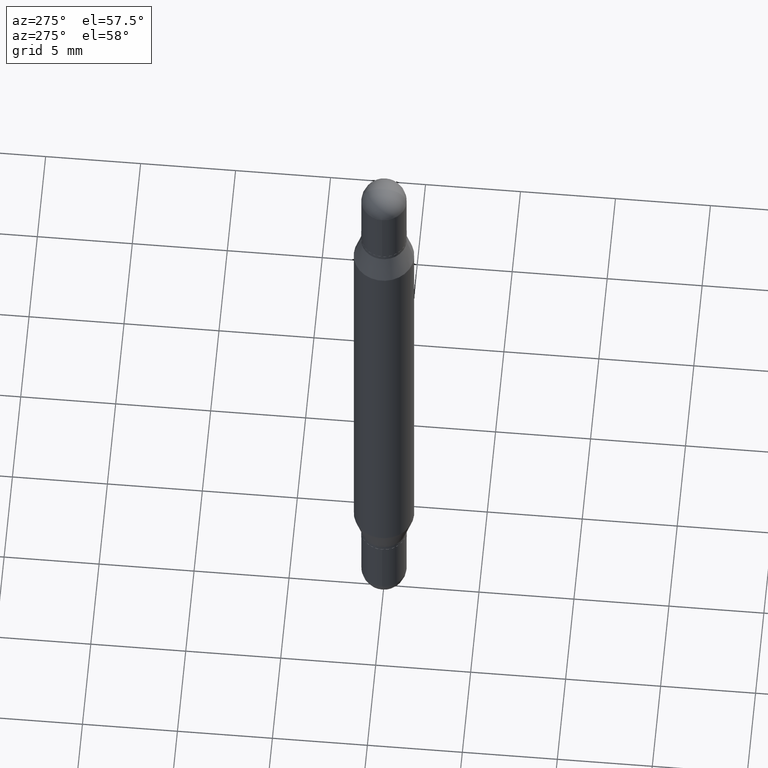
[diagram: clean part render]
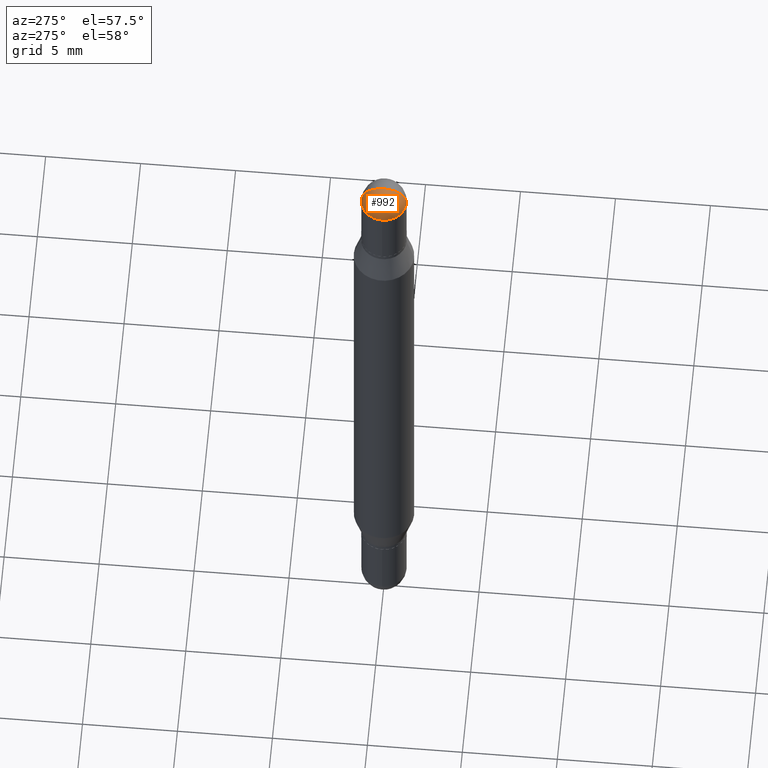
[diagram: same view with one face highlighted and labeled with its STEP entity id]
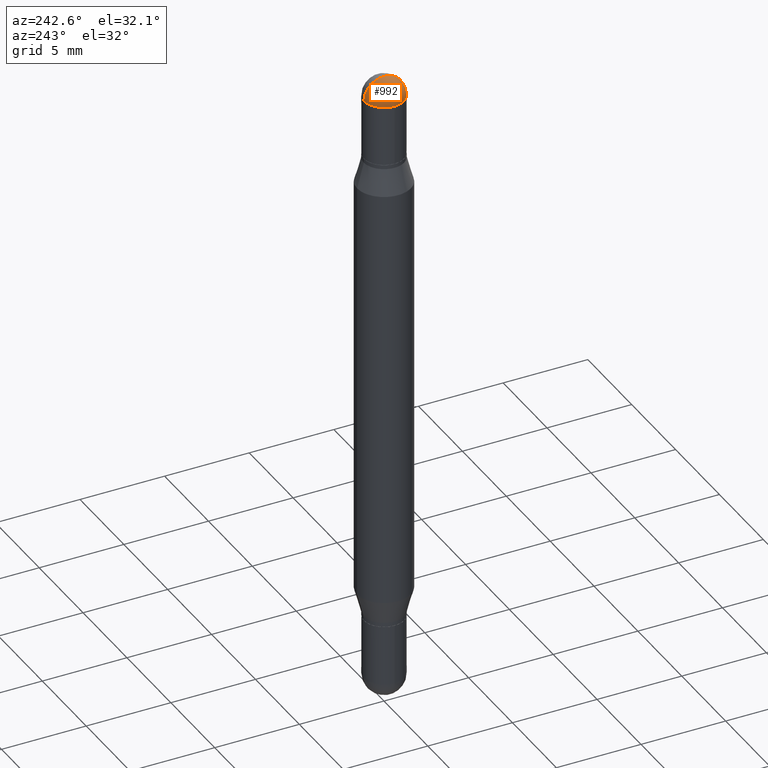
[diagram: same view with one face highlighted and labeled with its STEP entity id]
A machine part, auxiliary view. The second image highlights one B-rep face of the part: STEP entity #992.
A second angle (auxiliary view) of the same face is appended — the face is thin or edge-on in the first view.
In plain terms, the highlighted spherical surface has radius 1.1913 mm.
Its self-contained STEP definition (entity closure, byte-faithful):
#30 = DIRECTION ( 'NONE',  ( -6.982962677686266711E-15, -1.000000000000000000, 0.000000000000000000 ) ) ;
#42 = VERTEX_POINT ( 'NONE', #378 ) ;
#136 = VERTEX_POINT ( 'NONE', #461 ) ;
#148 = CARTESIAN_POINT ( 'NONE',  ( -3.217573560954492892E-16, -0.04690000000000017072, -0.04689999999999954622 ) ) ;
#186 = DIRECTION ( 'NONE',  ( 1.000000000000000000, -6.982962677686266711E-15, -1.566701062079992379E-31 ) ) ;
#244 = CARTESIAN_POINT ( 'NONE',  ( 3.275009495835214505E-16, 0.04689999999999983071, -0.04689999999999987235 ) ) ;
#267 = EDGE_CURVE ( 'NONE', #42, #639, #1015, .T. ) ;
#272 = SPHERICAL_SURFACE ( 'NONE', #551, 0.04689999999999999725 ) ;
#345 = FACE_OUTER_BOUND ( 'NONE', #591, .T. ) ;
#376 = DIRECTION ( 'NONE',  ( -1.000000000000000000, 6.982962677686265922E-15, 1.566701062080016245E-31 ) ) ;
#378 = CARTESIAN_POINT ( 'NONE',  ( 3.666197844329579344E-29, -1.177195064298716404E-17, 5.634436486932542518E-16 ) ) ;
#393 = EDGE_CURVE ( 'NONE', #705, #136, #769, .T. ) ;
#461 = CARTESIAN_POINT ( 'NONE',  ( -0.04689999999999999725, -9.408370971655837183E-17, -0.04689999999999971275 ) ) ;
#472 = EDGE_CURVE ( 'NONE', #42, #705, #568, .T. ) ;
#476 = DIRECTION ( 'NONE',  ( 1.000000000000000000, -6.860497997771530774E-15, -5.827999781331232286E-31 ) ) ;
#513 = CARTESIAN_POINT ( 'NONE',  ( 3.553510722267622201E-29, -1.720940724002473634E-16, -0.04689999999999971275 ) ) ;
#516 = AXIS2_PLACEMENT_3D ( 'NONE', #513, #1045, #947 ) ;
#526 = DIRECTION ( 'NONE',  ( 6.982962677686266711E-15, 1.000000000000000000, -3.458496260635727596E-15 ) ) ;
#551 = AXIS2_PLACEMENT_3D ( 'NONE', #953, #186, #526 ) ;
#568 = CIRCLE ( 'NONE', #1092, 0.04689999999999999725 ) ;
#582 = ORIENTED_EDGE ( 'NONE', *, *, #978, .T. ) ;
#591 = EDGE_LOOP ( 'NONE', ( #619, #1035, #727, #582 ) ) ;
#593 = AXIS2_PLACEMENT_3D ( 'NONE', #940, #1037, #605 ) ;
#605 = DIRECTION ( 'NONE',  ( 1.000000000000000000, -6.982962677686266711E-15, 0.000000000000000000 ) ) ;
#619 = ORIENTED_EDGE ( 'NONE', *, *, #267, .F. ) ;
#639 = VERTEX_POINT ( 'NONE', #148 ) ;
#678 = DIRECTION ( 'NONE',  ( 6.860497997771532351E-15, 1.000000000000000000, 0.000000000000000000 ) ) ;
#705 = VERTEX_POINT ( 'NONE', #244 ) ;
#727 = ORIENTED_EDGE ( 'NONE', *, *, #393, .T. ) ;
#764 = CARTESIAN_POINT ( 'NONE',  ( 3.549499992371371099E-29, -1.778376658882478616E-16, -0.04689999999999943520 ) ) ;
#769 = CIRCLE ( 'NONE', #516, 0.04689999999999999725 ) ;
#883 = CARTESIAN_POINT ( 'NONE',  ( 3.549499992371371099E-29, -1.778376658882478616E-16, -0.04689999999999943520 ) ) ;
#906 = AXIS2_PLACEMENT_3D ( 'NONE', #764, #476, #678 ) ;
#940 = CARTESIAN_POINT ( 'NONE',  ( 3.553510722267622201E-29, -1.720940724002473634E-16, -0.04689999999999971275 ) ) ;
#947 = DIRECTION ( 'NONE',  ( 1.000000000000000000, -6.982962677686266711E-15, 0.000000000000000000 ) ) ;
#953 = CARTESIAN_POINT ( 'NONE',  ( 3.549499992371371099E-29, -1.778376658882478616E-16, -0.04689999999999943520 ) ) ;
#978 = EDGE_CURVE ( 'NONE', #136, #639, #1026, .T. ) ;
#992 = ADVANCED_FACE ( 'NONE', ( #345 ), #272, .T. ) ;
#1015 = CIRCLE ( 'NONE', #906, 0.04689999999999999725 ) ;
#1026 = CIRCLE ( 'NONE', #593, 0.04689999999999999725 ) ;
#1035 = ORIENTED_EDGE ( 'NONE', *, *, #472, .T. ) ;
#1037 = DIRECTION ( 'NONE',  ( 2.445468806185136597E-29, 3.479614466977828254E-15, 1.000000000000000000 ) ) ;
#1045 = DIRECTION ( 'NONE',  ( 2.445468806185136597E-29, 3.479614466977828254E-15, 1.000000000000000000 ) ) ;
#1092 = AXIS2_PLACEMENT_3D ( 'NONE', #883, #376, #30 ) ;